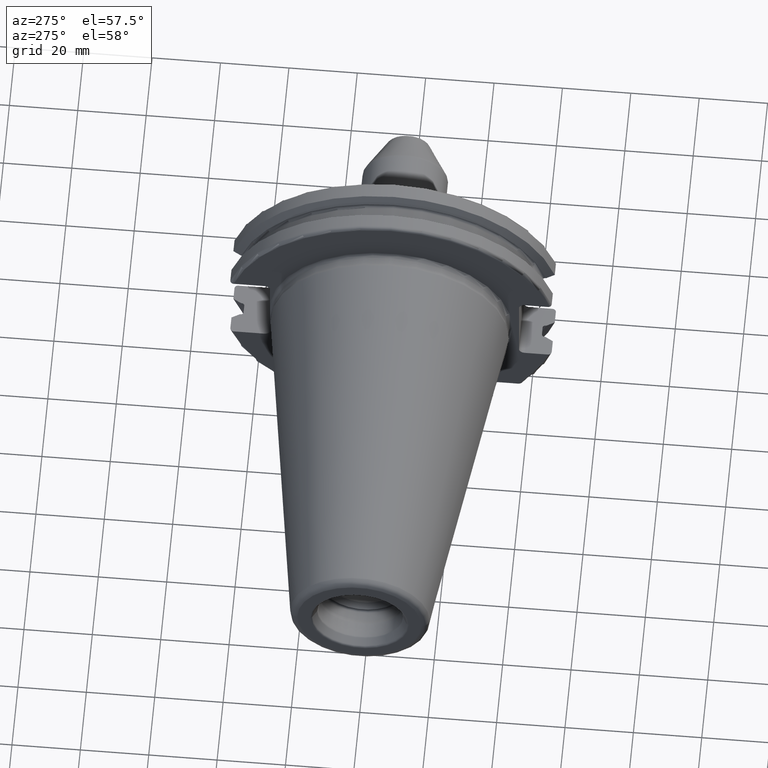
[diagram: clean part render]
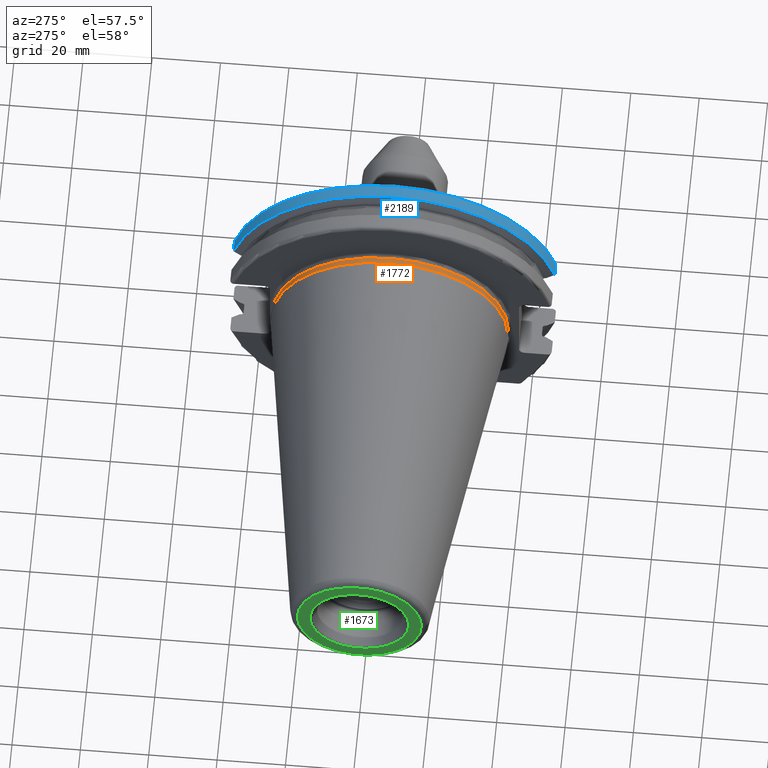
[diagram: same view with three faces highlighted in distinct colors, each labeled with its STEP entity id]
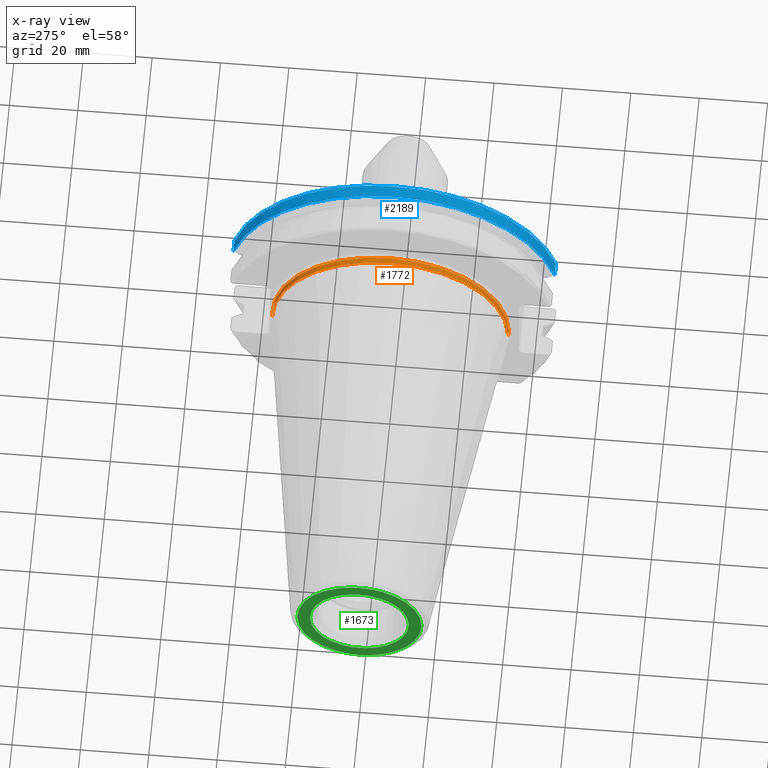
[diagram: x-ray of the same camera — body ghosted, the three highlighted faces saturated]
A machine part, auxiliary view with three faces highlighted in distinct colors.
The next image is the same camera in x-ray (body ghosted, the three faces saturated) — at least one of them is partly hidden behind the body in this view.
Their STEP definitions:

[orange] entity #1772 — the highlighted cylindrical surface (partial cylindrical patch) has radius 34.575 mm, axis along (1, 0, 0).
#73=CARTESIAN_POINT('',(5.500000000001E-1,0.E0,0.E0));
#74=DIRECTION('',(1.E0,0.E0,0.E0));
#75=DIRECTION('',(0.E0,1.E0,0.E0));
#76=AXIS2_PLACEMENT_3D('',#73,#74,#75);
#78=CARTESIAN_POINT('',(2.2E0,0.E0,0.E0));
#79=DIRECTION('',(1.E0,0.E0,0.E0));
#80=DIRECTION('',(0.E0,1.E0,0.E0));
#81=AXIS2_PLACEMENT_3D('',#78,#79,#80);
#83=DIRECTION('',(-1.E0,0.E0,0.E0));
#84=VECTOR('',#83,1.65E0);
#85=CARTESIAN_POINT('',(2.2E0,3.4575E1,0.E0));
#86=LINE('',#85,#84);
#87=DIRECTION('',(-1.E0,0.E0,0.E0));
#88=VECTOR('',#87,1.65E0);
#89=CARTESIAN_POINT('',(2.2E0,-3.4575E1,0.E0));
#90=LINE('',#89,#88);
#1392=CARTESIAN_POINT('',(2.2E0,3.4575E1,0.E0));
#1393=CARTESIAN_POINT('',(5.5E-1,3.4575E1,0.E0));
#1394=VERTEX_POINT('',#1392);
#1395=VERTEX_POINT('',#1393);
#1397=CARTESIAN_POINT('',(2.2E0,-3.4575E1,0.E0));
#1399=VERTEX_POINT('',#1397);
#1400=CARTESIAN_POINT('',(5.5E-1,-3.4575E1,0.E0));
#1401=VERTEX_POINT('',#1400);
#1758=CARTESIAN_POINT('',(-1.076325E2,0.E0,0.E0));
#1759=DIRECTION('',(1.E0,0.E0,0.E0));
#1760=DIRECTION('',(0.E0,-1.E0,0.E0));
#1761=AXIS2_PLACEMENT_3D('',#1758,#1759,#1760);
#1762=CYLINDRICAL_SURFACE('',#1761,3.4575E1);
#1764=ORIENTED_EDGE('',*,*,#1763,.F.);
#1766=ORIENTED_EDGE('',*,*,#1765,.T.);
#1768=ORIENTED_EDGE('',*,*,#1767,.T.);
#1769=ORIENTED_EDGE('',*,*,#1751,.F.);
#1770=EDGE_LOOP('',(#1764,#1766,#1768,#1769));
#1771=FACE_OUTER_BOUND('',#1770,.F.);
#1772=ADVANCED_FACE('',(#1771),#1762,.T.);
#77=CIRCLE('',#76,3.4575E1);
#82=CIRCLE('',#81,3.4575E1);
#1751=EDGE_CURVE('',#1395,#1401,#77,.T.);
#1763=EDGE_CURVE('',#1394,#1395,#86,.T.);
#1765=EDGE_CURVE('',#1394,#1399,#82,.T.);
#1767=EDGE_CURVE('',#1399,#1401,#90,.T.);

[blue] entity #2189 — the highlighted cylindrical surface (partial cylindrical patch) has radius 48.7375 mm, axis along (1, 0, 0).
#407=DIRECTION('',(1.E0,0.E0,0.E0));
#408=VECTOR('',#407,3.634621614173E0);
#409=CARTESIAN_POINT('',(1.441537838583E1,4.699929686974E1,1.29E1));
#410=LINE('',#409,#408);
#411=CARTESIAN_POINT('',(1.805E1,0.E0,0.E0));
#412=DIRECTION('',(1.E0,0.E0,0.E0));
#413=DIRECTION('',(0.E0,9.643354064066E-1,2.646832521159E-1));
#414=AXIS2_PLACEMENT_3D('',#411,#412,#413);
#416=DIRECTION('',(1.E0,0.E0,0.E0));
#417=VECTOR('',#416,3.634621614173E0);
#418=CARTESIAN_POINT('',(1.441537838583E1,-4.699929686974E1,1.29E1));
#419=LINE('',#418,#417);
#420=CARTESIAN_POINT('',(1.441537838583E1,0.E0,0.E0));
#421=DIRECTION('',(1.E0,0.E0,0.E0));
#422=DIRECTION('',(0.E0,9.643354064066E-1,2.646832521159E-1));
#423=AXIS2_PLACEMENT_3D('',#420,#421,#422);
#584=CARTESIAN_POINT('',(1.441537838583E1,4.699929686974E1,1.29E1));
#596=CARTESIAN_POINT('',(1.441537838583E1,-4.699929686974E1,1.29E1));
#1492=VERTEX_POINT('',#584);
#1493=VERTEX_POINT('',#596);
#1508=CARTESIAN_POINT('',(1.805E1,4.699929686974E1,1.29E1));
#1509=VERTEX_POINT('',#1508);
#1512=CARTESIAN_POINT('',(1.805E1,-4.699929686974E1,1.29E1));
#1513=VERTEX_POINT('',#1512);
#2177=CARTESIAN_POINT('',(-1.076325E2,0.E0,0.E0));
#2178=DIRECTION('',(1.E0,0.E0,0.E0));
#2179=DIRECTION('',(0.E0,-1.E0,0.E0));
#2180=AXIS2_PLACEMENT_3D('',#2177,#2178,#2179);
#2181=CYLINDRICAL_SURFACE('',#2180,4.87375E1);
#2182=ORIENTED_EDGE('',*,*,#2128,.T.);
#2183=ORIENTED_EDGE('',*,*,#2159,.T.);
#2184=ORIENTED_EDGE('',*,*,#2085,.F.);
#2186=ORIENTED_EDGE('',*,*,#2185,.F.);
#2187=EDGE_LOOP('',(#2182,#2183,#2184,#2186));
#2188=FACE_OUTER_BOUND('',#2187,.F.);
#2189=ADVANCED_FACE('',(#2188),#2181,.T.);
#415=CIRCLE('',#414,4.87375E1);
#424=CIRCLE('',#423,4.87375E1);
#2085=EDGE_CURVE('',#1493,#1513,#419,.T.);
#2128=EDGE_CURVE('',#1492,#1509,#410,.T.);
#2159=EDGE_CURVE('',#1509,#1513,#415,.T.);
#2185=EDGE_CURVE('',#1492,#1493,#424,.T.);

[green] entity #1673 — the highlighted planar face has unit normal (1, 0, 0).
#2=CARTESIAN_POINT('',(-1.016E2,0.E0,0.E0));
#3=DIRECTION('',(-1.E0,0.E0,0.E0));
#4=DIRECTION('',(0.E0,1.E0,0.E0));
#5=AXIS2_PLACEMENT_3D('',#2,#3,#4);
#7=CARTESIAN_POINT('',(-1.016E2,0.E0,0.E0));
#8=DIRECTION('',(1.E0,0.E0,0.E0));
#9=DIRECTION('',(0.E0,1.E0,0.E0));
#10=AXIS2_PLACEMENT_3D('',#7,#8,#9);
#12=CARTESIAN_POINT('',(-1.016E2,0.E0,0.E0));
#13=DIRECTION('',(1.E0,0.E0,0.E0));
#14=DIRECTION('',(0.E0,1.E0,0.E0));
#15=AXIS2_PLACEMENT_3D('',#12,#13,#14);
#17=CARTESIAN_POINT('',(-1.016E2,0.E0,0.E0));
#18=DIRECTION('',(1.E0,0.E0,0.E0));
#19=DIRECTION('',(0.E0,-1.E0,0.E0));
#20=AXIS2_PLACEMENT_3D('',#17,#18,#19);
#1385=CARTESIAN_POINT('',(-1.016E2,1.816144700117E1,0.E0));
#1387=VERTEX_POINT('',#1385);
#1389=CARTESIAN_POINT('',(-1.016E2,-1.816144700117E1,0.E0));
#1391=VERTEX_POINT('',#1389);
#1448=CARTESIAN_POINT('',(-1.016E2,1.446188021535E1,0.E0));
#1449=CARTESIAN_POINT('',(-1.016E2,-1.446188021535E1,0.E0));
#1450=VERTEX_POINT('',#1448);
#1451=VERTEX_POINT('',#1449);
#1656=CARTESIAN_POINT('',(-1.016E2,0.E0,0.E0));
#1657=DIRECTION('',(1.E0,0.E0,0.E0));
#1658=DIRECTION('',(0.E0,-1.E0,0.E0));
#1659=AXIS2_PLACEMENT_3D('',#1656,#1657,#1658);
#1660=PLANE('',#1659);
#1662=ORIENTED_EDGE('',*,*,#1661,.F.);
#1664=ORIENTED_EDGE('',*,*,#1663,.T.);
#1665=EDGE_LOOP('',(#1662,#1664));
#1666=FACE_OUTER_BOUND('',#1665,.F.);
#1668=ORIENTED_EDGE('',*,*,#1667,.F.);
#1670=ORIENTED_EDGE('',*,*,#1669,.F.);
#1671=EDGE_LOOP('',(#1668,#1670));
#1672=FACE_BOUND('',#1671,.F.);
#1673=ADVANCED_FACE('',(#1666,#1672),#1660,.F.);
#6=CIRCLE('',#5,1.816144700117E1);
#11=CIRCLE('',#10,1.816144700117E1);
#16=CIRCLE('',#15,1.446188021535E1);
#21=CIRCLE('',#20,1.446188021535E1);
#1661=EDGE_CURVE('',#1387,#1391,#6,.T.);
#1663=EDGE_CURVE('',#1387,#1391,#11,.T.);
#1667=EDGE_CURVE('',#1450,#1451,#16,.T.);
#1669=EDGE_CURVE('',#1451,#1450,#21,.T.);